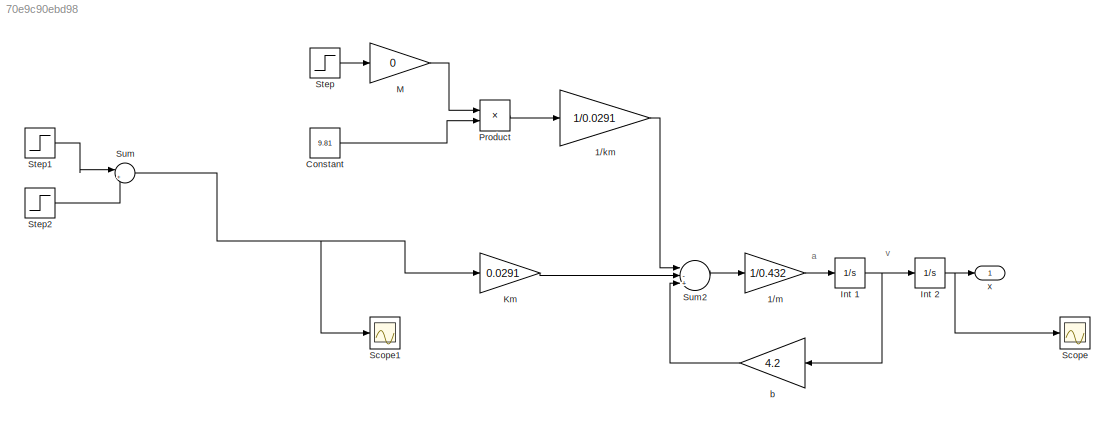
MODEL slx_70e9c90ebd98
KIND model
BLOCK [Gain] 1//km
  Gain = 1/0.0291
  OutDataTypeStr = Inherit: Inherit via internal rule
  ParamDataTypeStr = Inherit: Inherit via internal rule
  SaturateOnIntegerOverflow = off
BLOCK [Gain] 1//m
  Gain = 1/0.432
  OutDataTypeStr = Inherit: Inherit via internal rule
  ParamDataTypeStr = Inherit: Inherit via internal rule
  SaturateOnIntegerOverflow = off
BLOCK [Constant] Constant
  Value = 9.81
BLOCK [Integrator] Int 1
  Ports = [1, 1]
BLOCK [Integrator] Int 2
  Ports = [1, 1]
BLOCK [Gain] Km
  Gain = 0.0291
  OutDataTypeStr = Inherit: Inherit via internal rule
  ParamDataTypeStr = Inherit: Inherit via internal rule
  SaturateOnIntegerOverflow = off
BLOCK [Gain] M
  Gain = 0
  OutDataTypeStr = Inherit: Inherit via internal rule
  ParamDataTypeStr = Inherit: Inherit via internal rule
  SaturateOnIntegerOverflow = off
BLOCK [Product] Product
  InputSameDT = off
  OutDataTypeStr = Inherit: Inherit via internal rule
  Ports = [2, 1]
  SaturateOnIntegerOverflow = off
BLOCK [Scope] Scope
  DataFormat = StructureWithTime
  Floating = off
  NumInputPorts = 1
  Ports = [1]
  SampleTime = 0
  ShowLegends = off
BLOCK [Scope] Scope1
  DataFormat = StructureWithTime
  Floating = off
  NumInputPorts = 1
  Ports = [1]
  SampleTime = 0
  SaveName = ScopeData1
  ShowLegends = off
BLOCK [Step] Step
  SampleTime = 0
BLOCK [Step] Step1
  After = -100
  SampleTime = 0
  Time = .1
BLOCK [Step] Step2
  After = 100
  SampleTime = 0
  Time = 0
BLOCK [Sum] Sum
  IconShape = round
  InputSameDT = off
  Inputs = |++
  OutDataTypeStr = Inherit: Inherit via internal rule
  Ports = [2, 1]
  SaturateOnIntegerOverflow = off
BLOCK [Sum] Sum2
  InputSameDT = off
  Inputs = |-+-
  OutDataTypeStr = Inherit: Inherit via internal rule
  Ports = [3, 1]
  SaturateOnIntegerOverflow = off
BLOCK [Gain] b
  Gain = 4.2
  OutDataTypeStr = Inherit: Inherit via internal rule
  ParamDataTypeStr = Inherit: Inherit via internal rule
  SaturateOnIntegerOverflow = off
BLOCK [Outport] x
  IconDisplay = Port number
ANNOTATION (root): a
ANNOTATION (root): v
LINE 1//km:1 -> Sum2:1
LINE 1//m:1 -> Int 1:1
LINE Constant:1 -> Product:2
NET Int 1:1 -> Int 2:1, b:1
NET Int 2:1 -> Scope:1, x:1
LINE Km:1 -> Sum2:2
LINE M:1 -> Product:1
LINE Product:1 -> 1//km:1
LINE Step1:1 -> Sum:1
LINE Step2:1 -> Sum:2
LINE Step:1 -> M:1
LINE Sum2:1 -> 1//m:1
NET Sum:1 -> Km:1, Scope1:1
LINE b:1 -> Sum2:3
note: NET lines group one-source signal fan-out (src -> all destinations, sorted); 1:1 wires keep LINE
